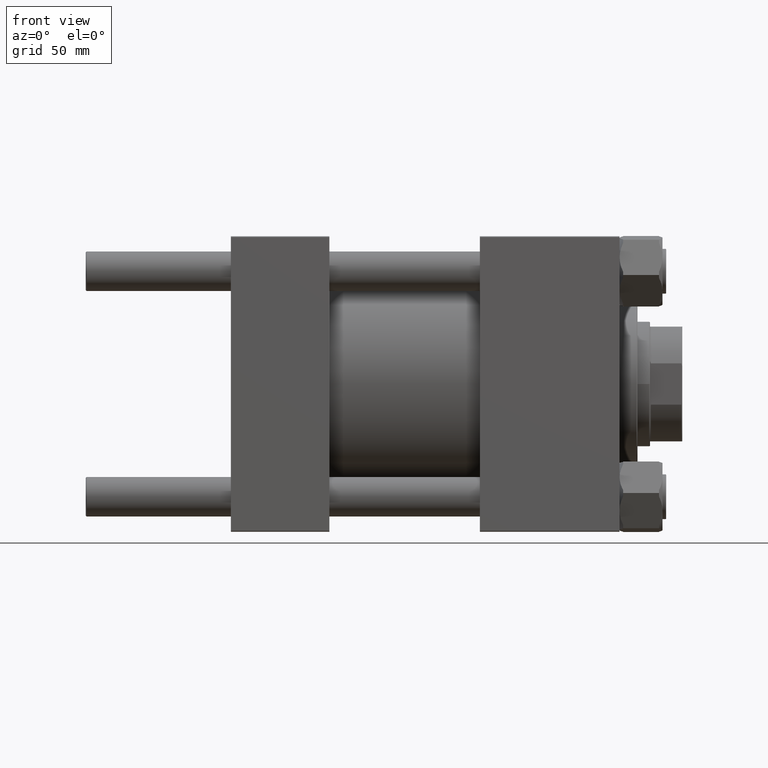
[diagram: clean part render]
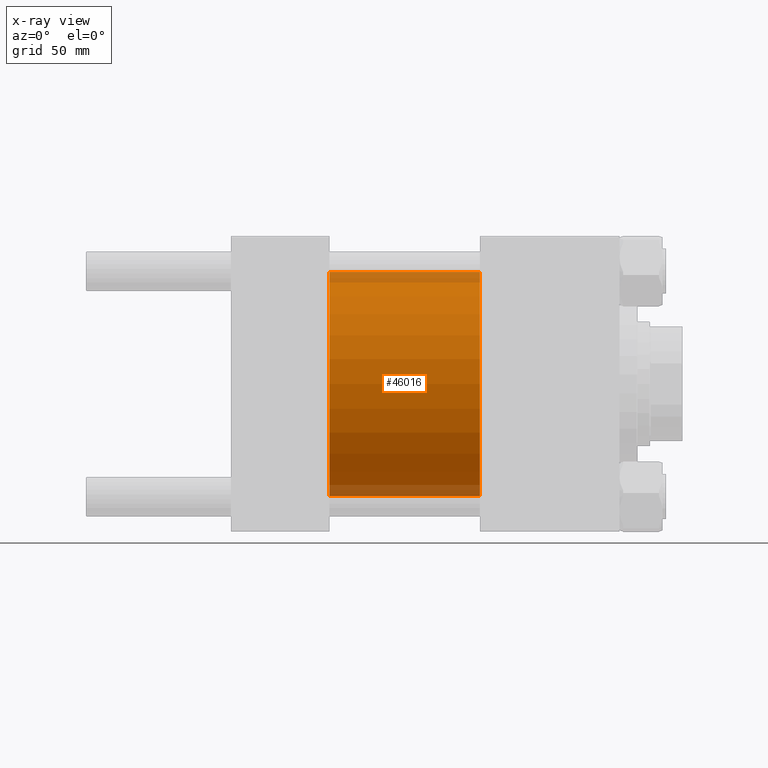
[diagram: x-ray — body ghosted, one internal face saturated and labeled with its STEP entity id]
A machine part, front view, then the same camera in x-ray: the body is ghosted and one INTERNAL B-rep face — a face not visible from any outside direction — is saturated and labeled: STEP entity #46016.
In plain terms, the highlighted cylindrical surface (partial cylindrical patch) has radius 62.5 mm, axis along (-1, -0, -0).
Its self-contained STEP definition (entity closure, byte-faithful):
#54 = DIRECTION ( 'NONE',  ( 0.000000000000000000, 0.000000000000000000, -1.000000000000000000 ) ) ;
#421 = ORIENTED_EDGE ( 'NONE', *, *, #4999, .T. ) ;
#1436 = ORIENTED_EDGE ( 'NONE', *, *, #3431, .F. ) ;
#1539 = CARTESIAN_POINT ( 'NONE',  ( 55.00000000000000000, 0.000000000000000000, 62.50000000000000000 ) ) ;
#1549 = AXIS2_PLACEMENT_3D ( 'NONE', #3956, #34837, #35865 ) ;
#2904 = EDGE_CURVE ( 'NONE', #22534, #21109, #41846, .T. ) ;
#3371 = EDGE_CURVE ( 'NONE', #37058, #15721, #48295, .T. ) ;
#3431 = EDGE_CURVE ( 'NONE', #21109, #15721, #44035, .T. ) ;
#3956 = CARTESIAN_POINT ( 'NONE',  ( 139.0000000000000000, 0.000000000000000000, 0.000000000000000000 ) ) ;
#4999 = EDGE_CURVE ( 'NONE', #22534, #37058, #40869, .T. ) ;
#7002 = ORIENTED_EDGE ( 'NONE', *, *, #3371, .T. ) ;
#8582 = CYLINDRICAL_SURFACE ( 'NONE', #1549, 62.50000000000000000 ) ;
#9285 = DIRECTION ( 'NONE',  ( 1.000000000000000000, 0.000000000000000000, 0.000000000000000000 ) ) ;
#10887 = DIRECTION ( 'NONE',  ( 1.000000000000000000, 0.000000000000000000, 0.000000000000000000 ) ) ;
#15721 = VERTEX_POINT ( 'NONE', #21845 ) ;
#18030 = AXIS2_PLACEMENT_3D ( 'NONE', #45830, #10887, #54 ) ;
#18376 = CARTESIAN_POINT ( 'NONE',  ( 139.0000000000000000, 0.000000000000000000, 62.50000000000000000 ) ) ;
#21109 = VERTEX_POINT ( 'NONE', #1539 ) ;
#21845 = CARTESIAN_POINT ( 'NONE',  ( 55.00000000000000000, 7.654042494670956226E-15, -62.50000000000000000 ) ) ;
#22534 = VERTEX_POINT ( 'NONE', #34128 ) ;
#27696 = FACE_OUTER_BOUND ( 'NONE', #34566, .T. ) ;
#28652 = DIRECTION ( 'NONE',  ( -1.000000000000000000, -0.000000000000000000, -0.000000000000000000 ) ) ;
#29389 = VECTOR ( 'NONE', #33180, 1000.000000000000000 ) ;
#30179 = AXIS2_PLACEMENT_3D ( 'NONE', #33241, #9285, #48794 ) ;
#32624 = VECTOR ( 'NONE', #28652, 1000.000000000000000 ) ;
#33180 = DIRECTION ( 'NONE',  ( -1.000000000000000000, -0.000000000000000000, -0.000000000000000000 ) ) ;
#33241 = CARTESIAN_POINT ( 'NONE',  ( 55.00000000000000000, 0.000000000000000000, 0.000000000000000000 ) ) ;
#34128 = CARTESIAN_POINT ( 'NONE',  ( 139.0000000000000000, 0.000000000000000000, 62.50000000000000000 ) ) ;
#34566 = EDGE_LOOP ( 'NONE', ( #421, #7002, #1436, #45343 ) ) ;
#34837 = DIRECTION ( 'NONE',  ( -1.000000000000000000, -0.000000000000000000, -0.000000000000000000 ) ) ;
#35865 = DIRECTION ( 'NONE',  ( 0.000000000000000000, 0.000000000000000000, 1.000000000000000000 ) ) ;
#37058 = VERTEX_POINT ( 'NONE', #47826 ) ;
#40869 = CIRCLE ( 'NONE', #18030, 62.50000000000000000 ) ;
#41846 = LINE ( 'NONE', #18376, #29389 ) ;
#44035 = CIRCLE ( 'NONE', #30179, 62.50000000000000000 ) ;
#45343 = ORIENTED_EDGE ( 'NONE', *, *, #2904, .F. ) ;
#45830 = CARTESIAN_POINT ( 'NONE',  ( 139.0000000000000000, 0.000000000000000000, 0.000000000000000000 ) ) ;
#46016 = ADVANCED_FACE ( 'NONE', ( #27696 ), #8582, .F. ) ;
#47826 = CARTESIAN_POINT ( 'NONE',  ( 139.0000000000000000, 7.654042494670956226E-15, -62.50000000000000000 ) ) ;
#48295 = LINE ( 'NONE', #48546, #32624 ) ;
#48546 = CARTESIAN_POINT ( 'NONE',  ( 139.0000000000000000, 7.654042494670956226E-15, -62.50000000000000000 ) ) ;
#48794 = DIRECTION ( 'NONE',  ( 0.000000000000000000, 0.000000000000000000, -1.000000000000000000 ) ) ;